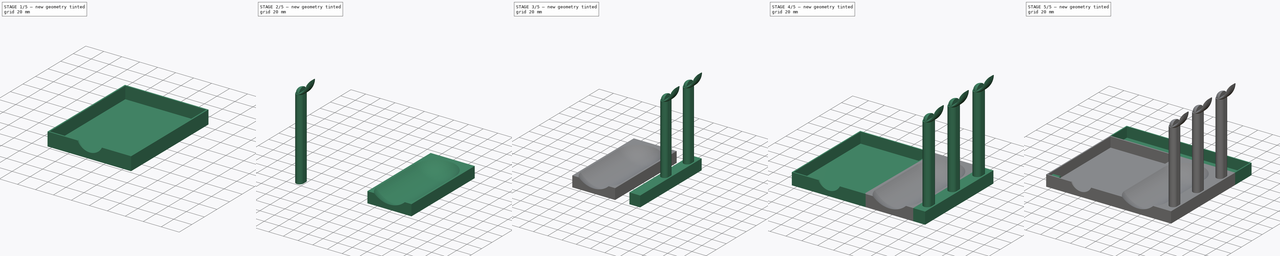
[diagram: build sequence overview — one tinted view per stage of 5, left to right]
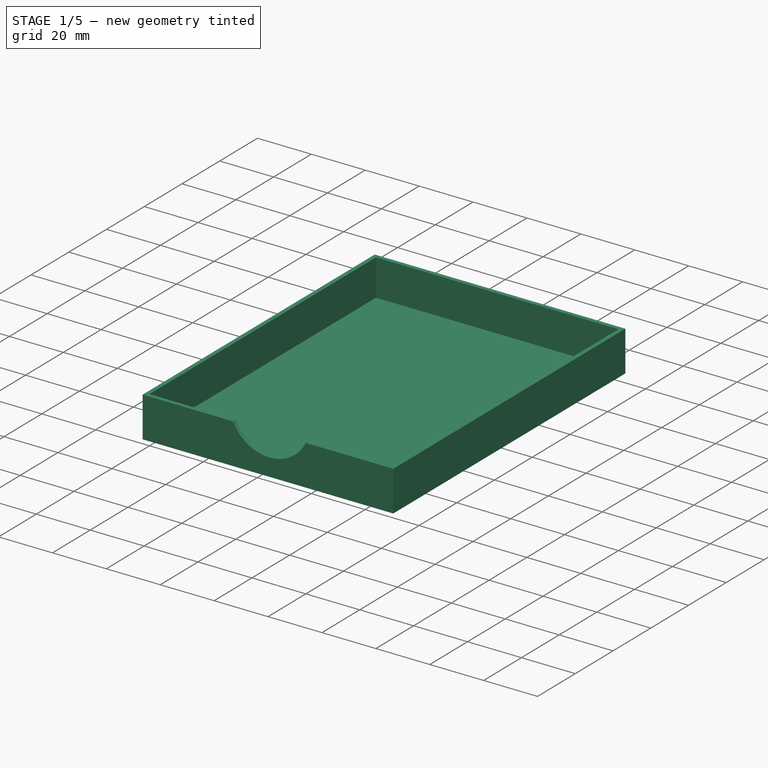
[diagram: stage 1 of 5 — iso view after this stage's code; geometry added in this stage tinted green]
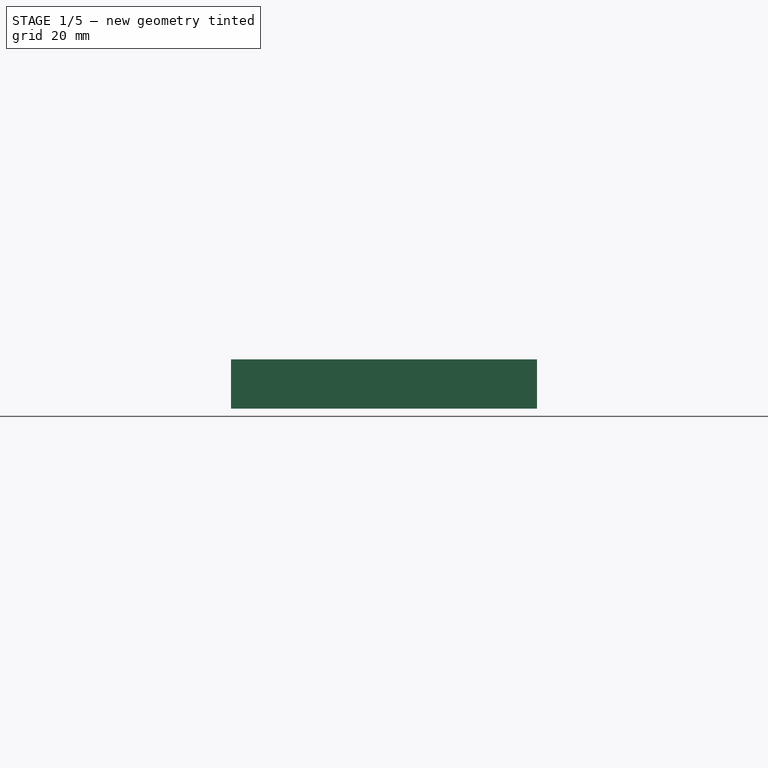
[diagram: stage 1 of 5 — front view after this stage's code; geometry added in this stage tinted green]
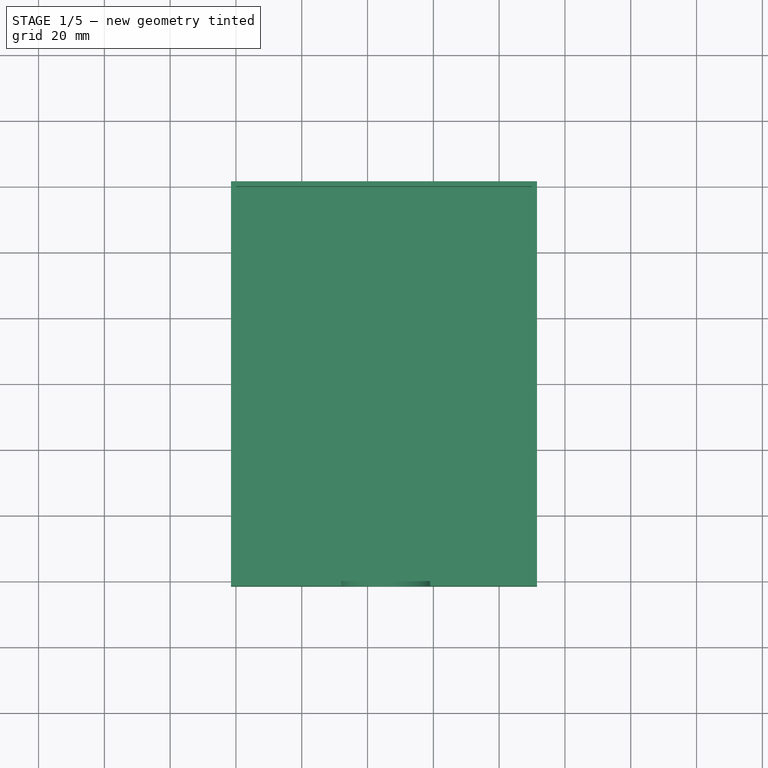
[diagram: stage 1 of 5 — top view after this stage's code; geometry added in this stage tinted green]
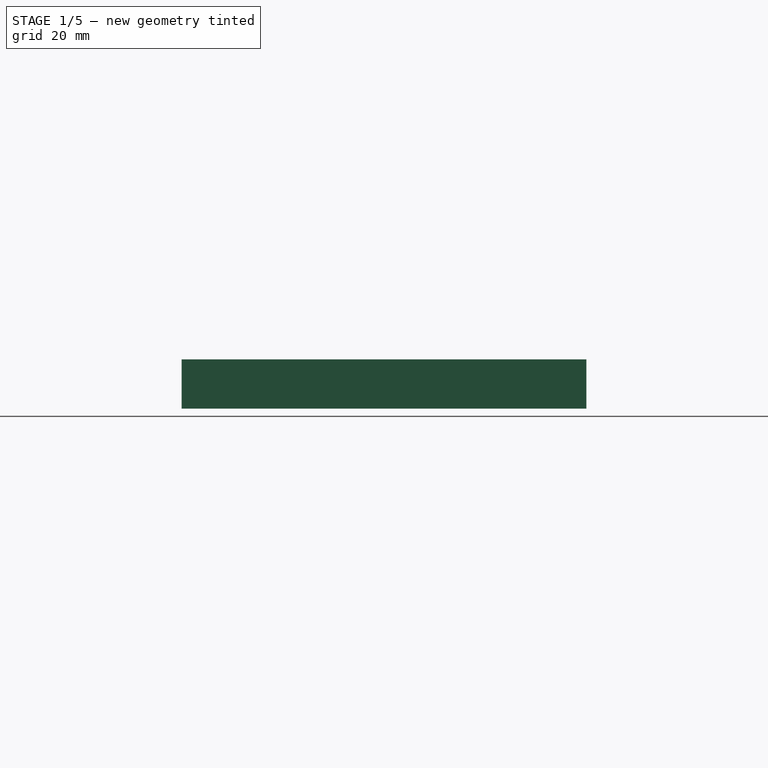
[diagram: stage 1 of 5 — right view after this stage's code; geometry added in this stage tinted green]
FCSTD DOCUMENT  (FreeCAD 0.18RUnknown)
Label: monedero_v2
License: All rights reserved
LicenseURL: http://en.wikipedia.org/wiki/All_rights_reserved
objects: Part::MultiFuse×9, App::Part×4, Sketcher::SketchObject×4, PartDesign::Body×4, PartDesign::AdditiveBox×3, Part::Box×2, Part::Thickness×1, Part::Cylinder×1, Part::Cut×1, PartDesign::AdditivePipe×1, PartDesign::AdditiveSphere×1, PartDesign::Plane×1, PartDesign::Groove×1, PartDesign::Thickness×1
note: 36 computed .brp shape members not serialized (recipe doc carries the construction recipe); baked Part::Feature solids carry a one-line shape summary decoded from their .brp

FEATURE [Part::Box] Box  label="Cubo"
  AttacherType = Attacher::AttachEngine3D
  Height = 13.5
  Length = 90
  Width = 120
FEATURE [Part::Thickness] Thickness
  Faces = -> Box [Face6]
  Intersection = true
  Join = 2
  Mode = 0
  SelfIntersection = true
  Value = 1.5
FEATURE [Part::Cylinder] Cylinder  label="Cilindro"
  Angle = 180
  AttacherType = Attacher::AttachEngine3D
  Height = 10
  Placement = pos=(45.5,5,20) rot=(0,0.707107,-0.707107;3.14159rad)
  Radius = 15
FEATURE [Part::Cut] Cut
  Base = -> Thickness
  Tool = -> Cylinder
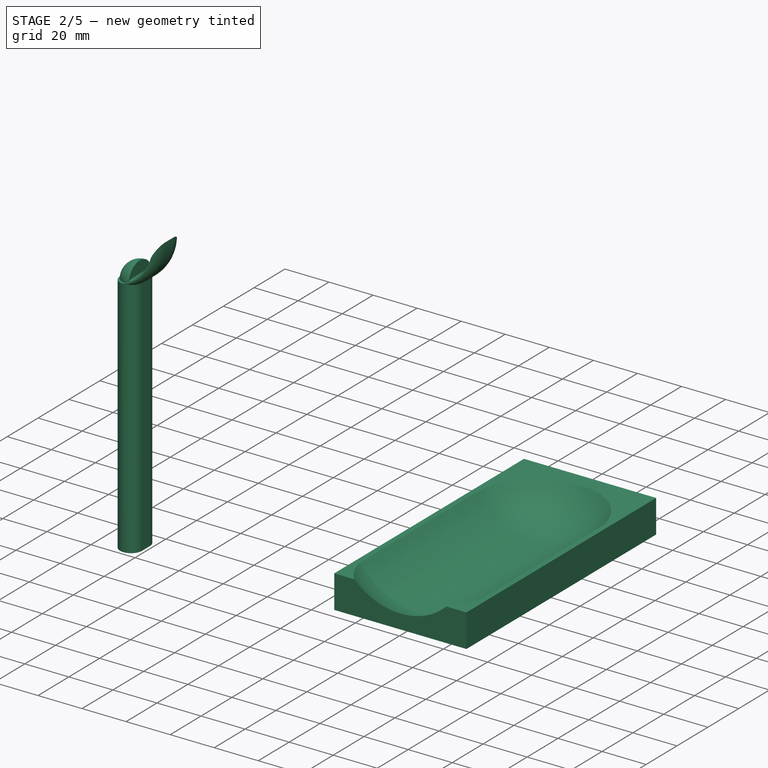
[diagram: stage 2 of 5 — iso view after this stage's code; geometry added in this stage tinted green]
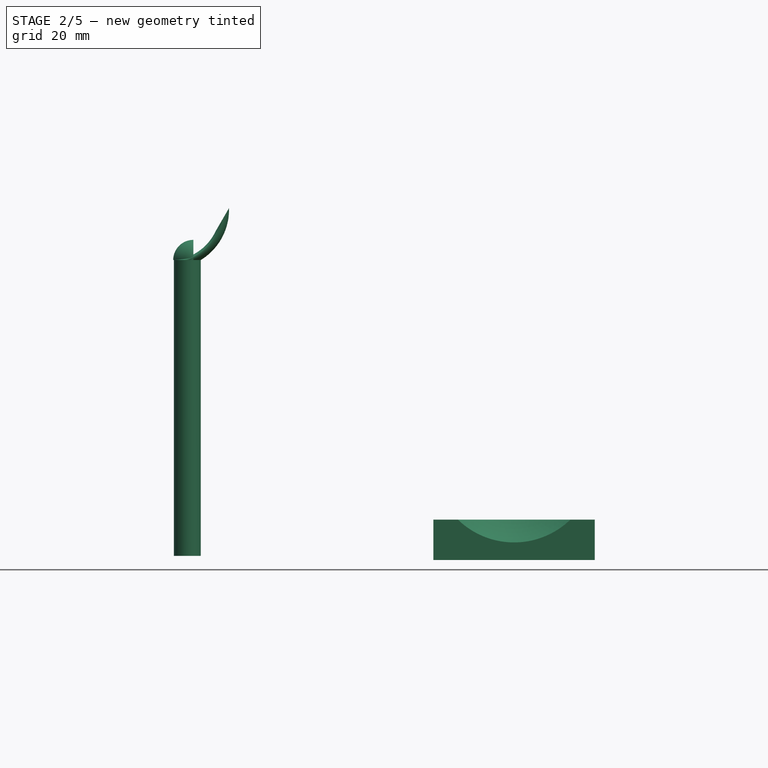
[diagram: stage 2 of 5 — front view after this stage's code; geometry added in this stage tinted green]
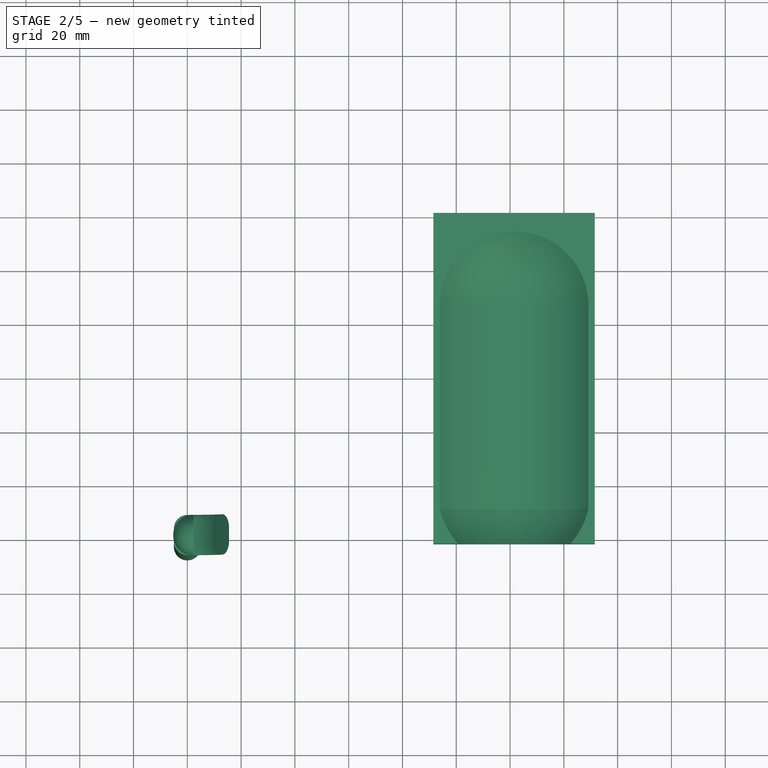
[diagram: stage 2 of 5 — top view after this stage's code; geometry added in this stage tinted green]
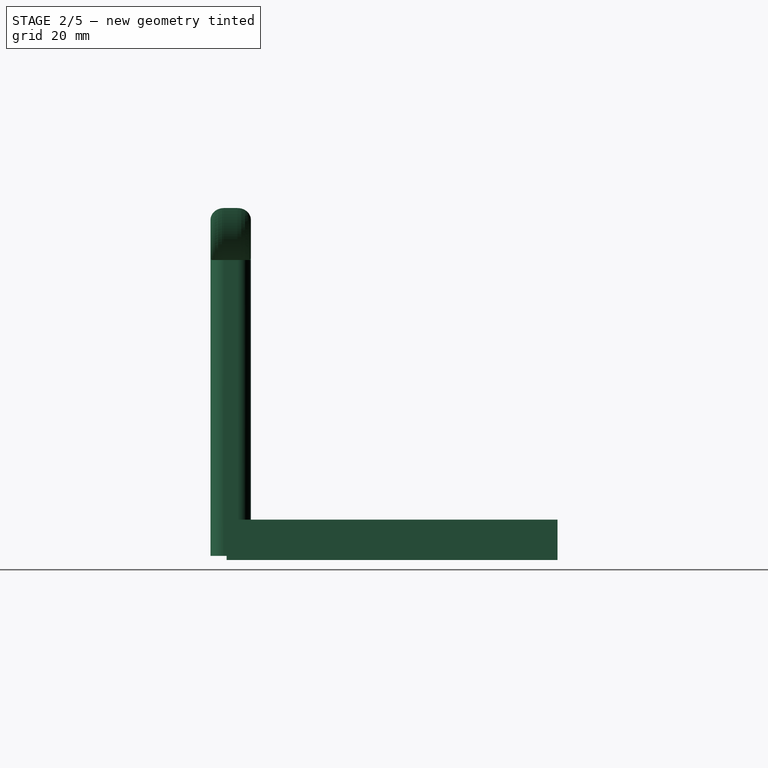
[diagram: stage 2 of 5 — right view after this stage's code; geometry added in this stage tinted green]
FEATURE [Sketcher::SketchObject] Sketch
  MapMode = 5
  Support = -> [XY_Plane005]
  sketch-geometry (4):
    g0: ArcOfCircle CenterX=-1e-16 CenterY=2.5 CenterZ=0 NormalX=0 NormalY=0 NormalZ=1 AngleXU=0 Radius=5 StartAngle=1e-16 EndAngle=3.14159
    g1: ArcOfCircle CenterX=-1e-16 CenterY=-2.5 CenterZ=0 NormalX=0 NormalY=0 NormalZ=1 AngleXU=0 Radius=5 StartAngle=3.14159 EndAngle=6.28319
    g2: LineSegment StartX=-5 StartY=2.5 StartZ=0 EndX=-5 EndY=-2.5 EndZ=0
    g3: LineSegment StartX=5 StartY=2.5 StartZ=0 EndX=5 EndY=-2.5 EndZ=0
  constraints (8):
    c: Tangent(g0,g3) = 1.5708
    c: Tangent(g0,g2) = -1.5708
    c: Tangent(g2,g1) = -1.5708
    c: Tangent(g3,g1) = 1.5708
    c: Symmetric(g0,g0,g-2)
    c: Symmetric(g1,g0,g-1)
    c: Radius(g1) = 5
    c: DistanceY(g3,g3) = 5
FEATURE [PartDesign::Body] Body001
  Group = -> [Sketch]
  Origin = -> Origin005
FEATURE [Sketcher::SketchObject] CopySketch
  sketch-geometry (4):
    g0: ArcOfCircle CenterX=-1e-16 CenterY=2.5 CenterZ=0 NormalX=0 NormalY=0 NormalZ=1 AngleXU=0 Radius=5 StartAngle=1e-16 EndAngle=3.14159
    g1: ArcOfCircle CenterX=-1e-16 CenterY=-2.5 CenterZ=0 NormalX=0 NormalY=0 NormalZ=1 AngleXU=0 Radius=5 StartAngle=3.14159 EndAngle=6.28319
    g2: LineSegment StartX=-5 StartY=2.5 StartZ=0 EndX=-5 EndY=-2.5 EndZ=0
    g3: LineSegment StartX=5 StartY=2.5 StartZ=0 EndX=5 EndY=-2.5 EndZ=0
  constraints (8):
    c: Tangent(g0,g3) = 1.5708
    c: Tangent(g0,g2) = -1.5708
    c: Tangent(g2,g1) = -1.5708
    c: Tangent(g3,g1) = 1.5708
    c: Symmetric(g0,g0,g-2)
    c: Symmetric(g1,g0,g-1)
    c: Radius(g1) = 5
    c: DistanceY(g3,g3) = 5
FEATURE [PartDesign::AdditivePipe] AdditivePipe
  AuxilleryCurvelinear = true
  AuxillerySpineTangent = false
  Binormal = (0,0,0)
  Mode = 0
  Profile = -> CopySketch
  Spine = -> Sketch001
  SpineTangent = false
  Transformation = 0
  Transition = 0
FEATURE [PartDesign::AdditiveSphere] Sphere001
  Angle1 = -90
  Angle2 = 90
  Angle3 = 90
  AttacherType = Attacher::AttachEngine3D
  AttachmentOffset = pos=(-7.25,0,-2.5) rot=(0.707107,0.707107,0;3.14159rad)
  BaseFeature = -> AdditivePipe
  MapMode = 7
  Placement = pos=(2.25,0,110) rot=(-0.57735,0.57735,-0.57735;4.18879rad)
  Radius = 7.5
  Support = -> [AdditivePipe]
FEATURE [PartDesign::Body] Body002  label="colgador"
  Group = -> [Box006]
  Origin = -> Origin006
  Placement = pos=(180,5,0) rot=(0,0,1;0rad)
  Tip = -> Box006
FEATURE [App::Part] Part003  label="Llavero"
  Group = -> [Body001,Body002,Box005,CopySketch,Sphere001,Sketch001,AdditivePipe,Fusion,Fusion001,Fusion002,Fusion004,Fusion003,Fusion005]
  Origin = -> Origin004
  Placement = pos=(-20,0,0) rot=(0,0,1;0rad)
FEATURE [PartDesign::AdditiveBox] Box007
  AttacherType = Attacher::AttachEngine3D
  Height = 15
  Length = 60
  MapMode = 1
  Placement = pos=(91.5,-1.5,-1.5) rot=(0,0,1;0rad)
  Support = -> [Cut]
  Width = 123
FEATURE [PartDesign::Plane] DatumPlane
  AttachmentOffset = pos=(30,0,21.5) rot=(0,0,1;0rad)
  Length = 190.646
  MapMode = 5
  Placement = pos=(121.5,-1.5,35) rot=(0,0,1;0rad)
  ResizeMode = 0
  Support = -> [Box007]
  Width = 160.646
FEATURE [Sketcher::SketchObject] Sketch002
  ExternalGeometry = -> [Box007]
  MapMode = 5
  Placement = pos=(121.5,-1.5,35) rot=(0,0,1;0rad)
  Support = -> [DatumPlane]
  sketch-geometry (4):
    g0: LineSegment StartX=1.07e-14 StartY=123.5 StartZ=0 EndX=-6.5e-15 EndY=-16.5 EndZ=0
    g1: LineSegment StartX=35 StartY=88 StartZ=0 EndX=35 EndY=13 EndZ=0
    g2: ArcOfCircle CenterX=0 CenterY=88.4965 CenterZ=0 NormalX=0 NormalY=0 NormalZ=1 AngleXU=0 Radius=35.0035 StartAngle=6.269 EndAngle=7.85398
    g3: ArcOfCircle CenterX=0 CenterY=19.0127 CenterZ=0 NormalX=0 NormalY=0 NormalZ=1 AngleXU=0 Radius=35.5127 StartAngle=4.71239 EndAngle=6.11305
  constraints (14):
    c: PointOnObject(g0,g-2)
    c: PointOnObject(g0,g-2)
    c: Distance(g0,g-3) = 0.5
    c: DistanceY(g0,g0) = 140
    c: Vertical(g1)
    c: Distance(g1,g-3) = 35
    c: DistanceY(g1,g1) = 75
    c: Distance(g1,g0) = 35
    c: Coincident(g2,g0)
    c: Coincident(g2,g1)
    c: Coincident(g3,g0)
    c: Coincident(g3,g1)
    c: PointOnObject(g2,g0)
    c: PointOnObject(g3,g0)
FEATURE [PartDesign::Groove] Groove
  Angle = 180
  Axis = (0,1,0)
  Base = (121.5,-1.5,35)
  BaseFeature = -> Box007
  Placement = pos=(91.5,-1.5,-1.5) rot=(0,0,1;0rad)
  Profile = -> Sketch002
  ReferenceAxis = -> Sketch002 [V_Axis]
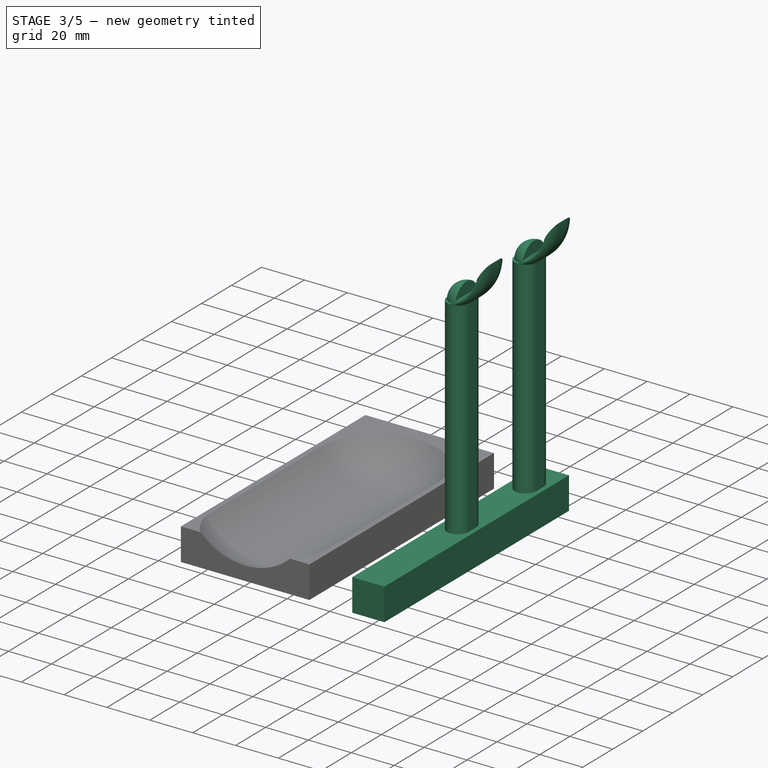
[diagram: stage 3 of 5 — iso view after this stage's code; geometry added in this stage tinted green]
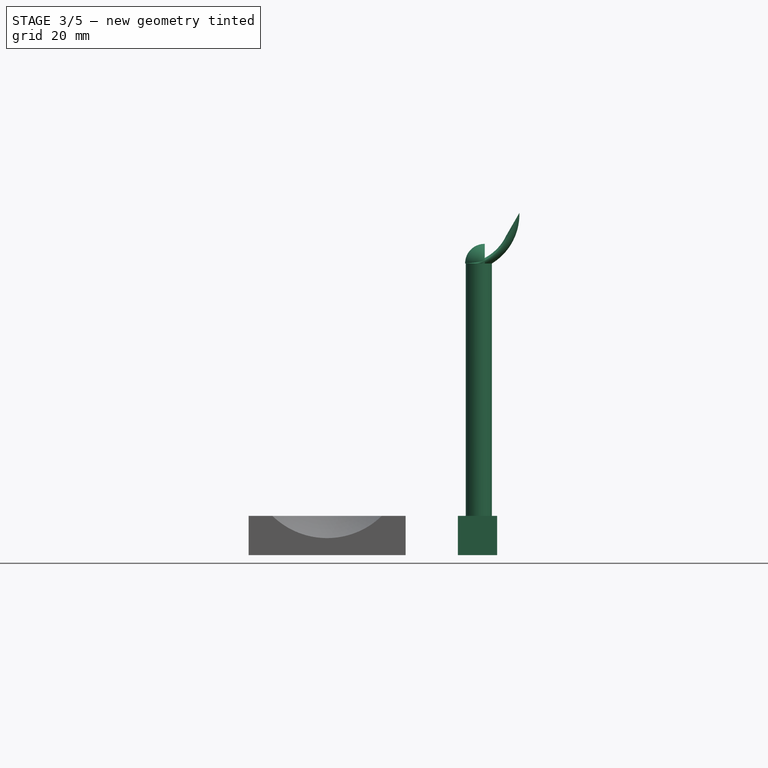
[diagram: stage 3 of 5 — front view after this stage's code; geometry added in this stage tinted green]
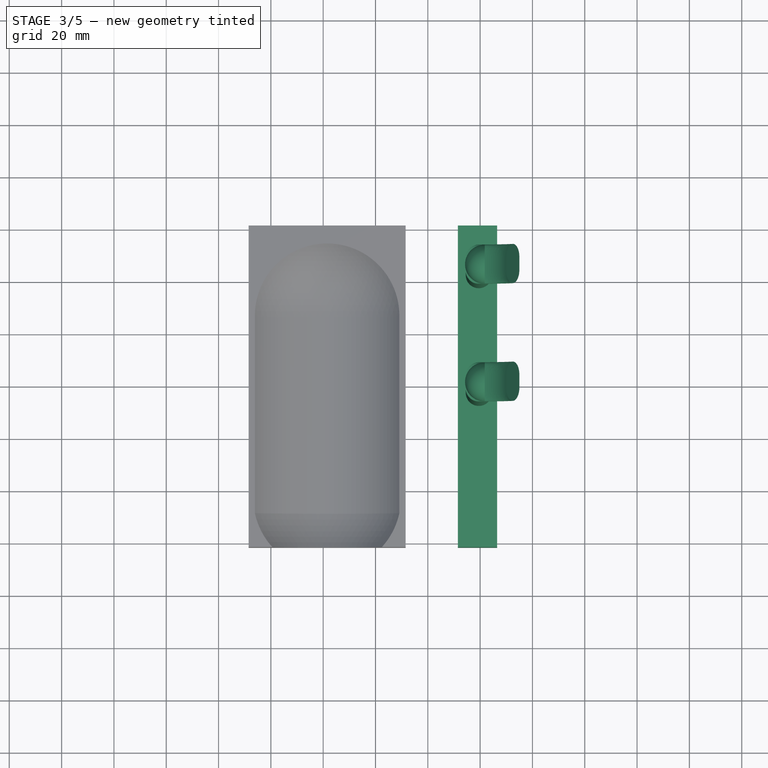
[diagram: stage 3 of 5 — top view after this stage's code; geometry added in this stage tinted green]
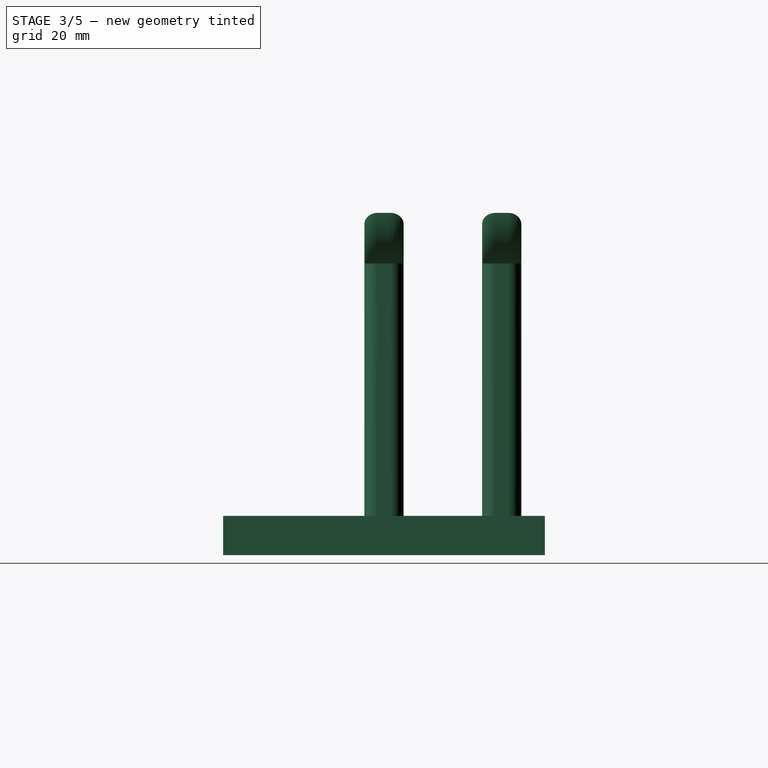
[diagram: stage 3 of 5 — right view after this stage's code; geometry added in this stage tinted green]
FEATURE [App::Part] Part  label="Cartera"
  Group = -> [Thickness,Box,Cylinder,Cut]
  Origin = -> Origin
FEATURE [Sketcher::SketchObject] Sketch001
  MapMode = 5
  Placement = pos=(0,0,0) rot=(1,0,0;1.5708rad)
  Support = -> [XZ_Plane006]
  sketch-geometry (2):
    g0: LineSegment StartX=3.6e-15 StartY=0 StartZ=0 EndX=3.6e-15 EndY=110 EndZ=0
    g1: ArcOfCircle CenterX=-6.49038 CenterY=128.758 CenterZ=0 NormalX=0 NormalY=0 NormalZ=1 AngleXU=0 Radius=19.8494 StartAngle=5.0455 EndAngle=6.09269
  constraints (7):
    c: Vertical(g0)
    c: DistanceY(g0,g0) = 110
    c: Angle(g1) = 1.0472
    c: Coincident(g-1,g0)
    c: Distance(g1,g-2) = 13
    c: Distance(g1,g-1) = 125
    c: Coincident(g0,g1)
FEATURE [Part::Box] Box005  label="Cubo005"
  AttacherType = Attacher::AttachEngine3D
  Height = 15
  Length = 15
  Placement = pos=(171.5,-1.5,-1.5) rot=(0,0,1;0rad)
  Width = 123
FEATURE [Part::MultiFuse] Fusion001  label="brazo001"
  Placement = pos=(179.5,60,0) rot=(0,0,1;0rad)
  Shapes = -> [AdditivePipe,Sphere001]
FEATURE [Part::MultiFuse] Fusion002  label="brazo002"
  Placement = pos=(179.5,105,0) rot=(0,0,1;0rad)
  Shapes = -> [AdditivePipe,Sphere001]
FEATURE [Part::MultiFuse] Fusion003
  Shapes = -> [Box005,Fusion002]
FEATURE [Part::MultiFuse] Fusion004
  Shapes = -> [Fusion003,Fusion001]
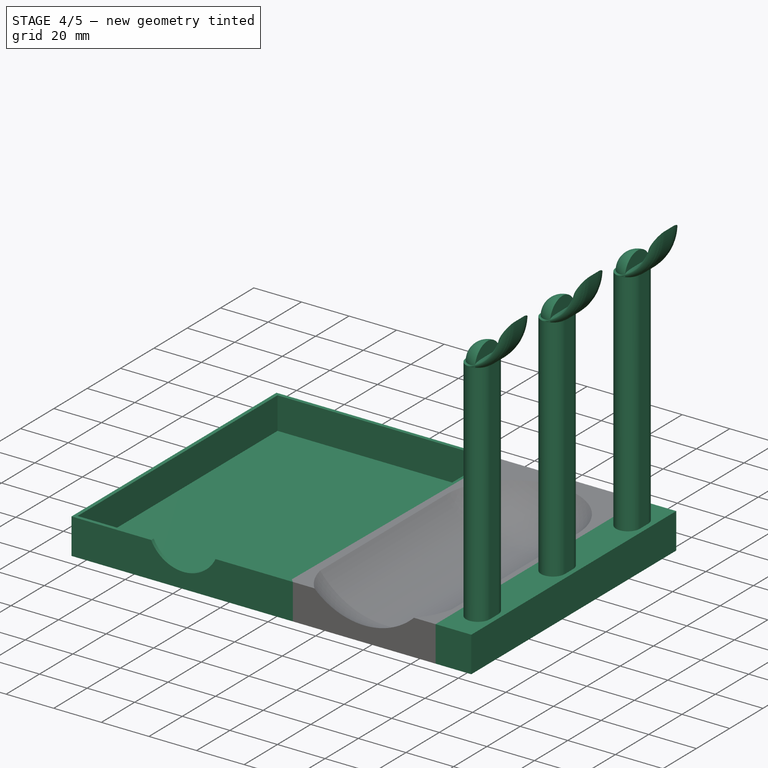
[diagram: stage 4 of 5 — iso view after this stage's code; geometry added in this stage tinted green]
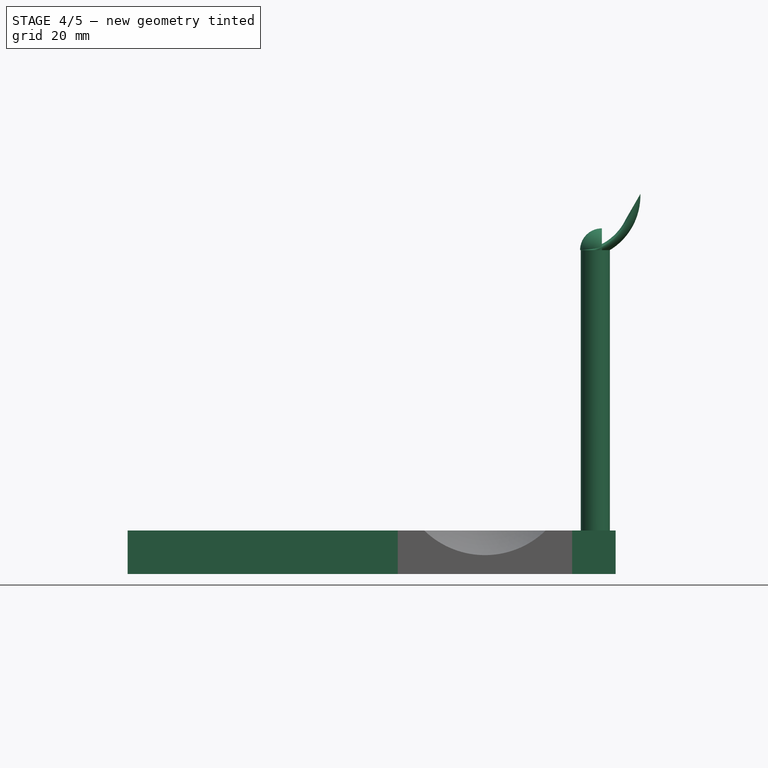
[diagram: stage 4 of 5 — front view after this stage's code; geometry added in this stage tinted green]
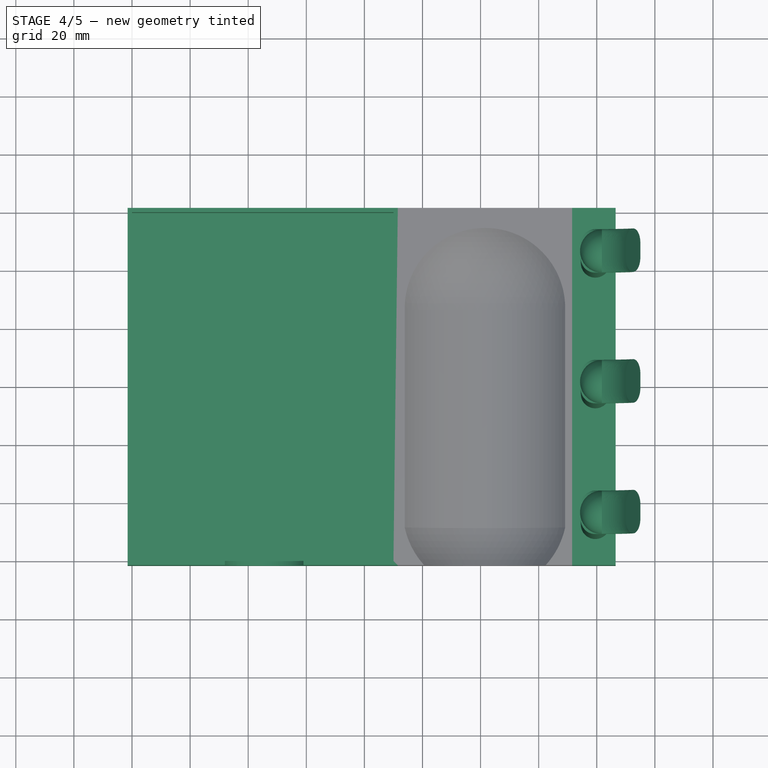
[diagram: stage 4 of 5 — top view after this stage's code; geometry added in this stage tinted green]
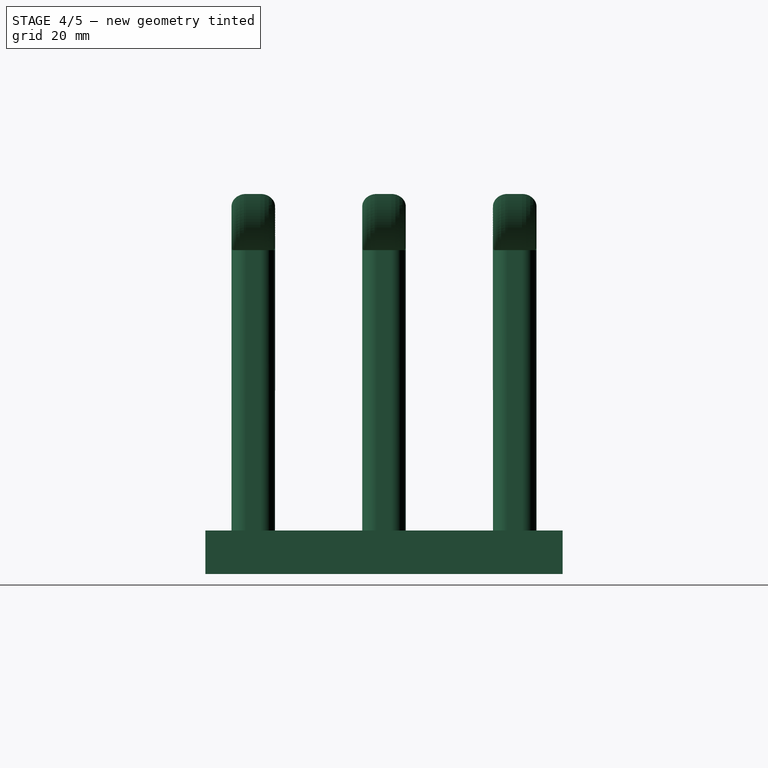
[diagram: stage 4 of 5 — right view after this stage's code; geometry added in this stage tinted green]
FEATURE [Part::MultiFuse] Fusion  label="brazo"
  Placement = pos=(179.5,15,0) rot=(0,0,1;0rad)
  Shapes = -> [AdditivePipe,Sphere001]
FEATURE [Part::MultiFuse] Fusion005
  Placement = pos=(-20,0,0) rot=(0,0,1;0rad)
  Shapes = -> [Fusion004,Fusion]
FEATURE [PartDesign::Body] Body003
  Group = -> [Box008,Thickness001]
  Origin = -> Origin010
  Tip = -> Thickness001
FEATURE [App::Part] Part005  label="gafas"
  Group = -> [Body003]
  Origin = -> Origin009
FEATURE [Part::MultiFuse] Fusion006
  Shapes = -> [Fusion005,Body]
FEATURE [Part::MultiFuse] Fusion007
  Shapes = -> [Fusion006,Cut]
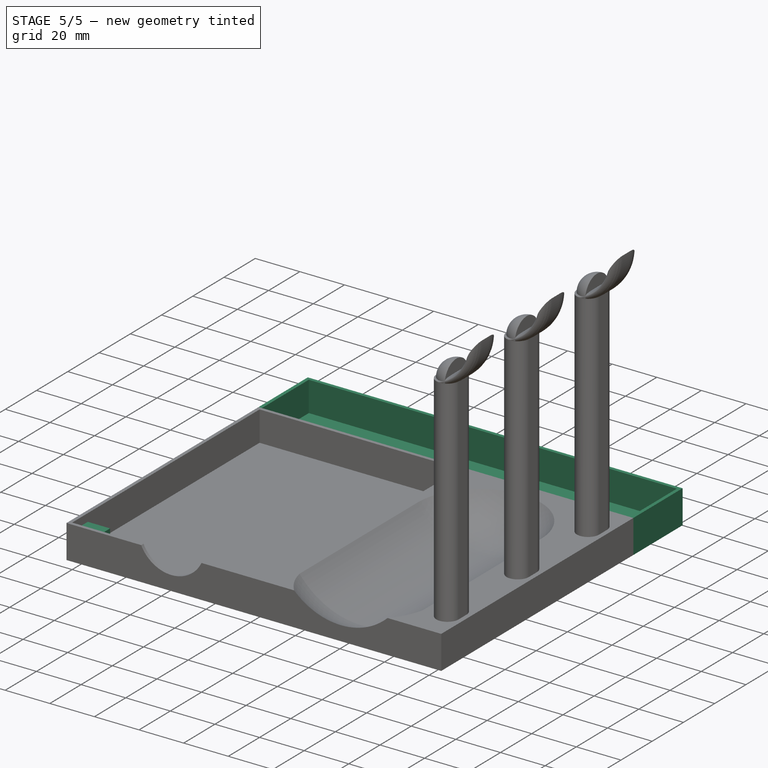
[diagram: stage 5 of 5 — iso view after this stage's code; geometry added in this stage tinted green]
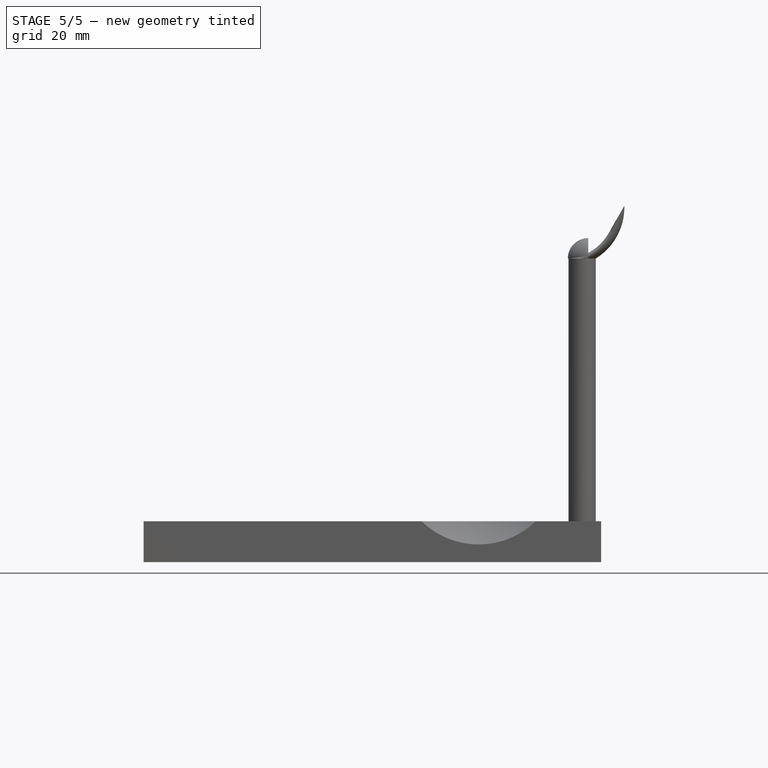
[diagram: stage 5 of 5 — front view after this stage's code; geometry added in this stage tinted green]
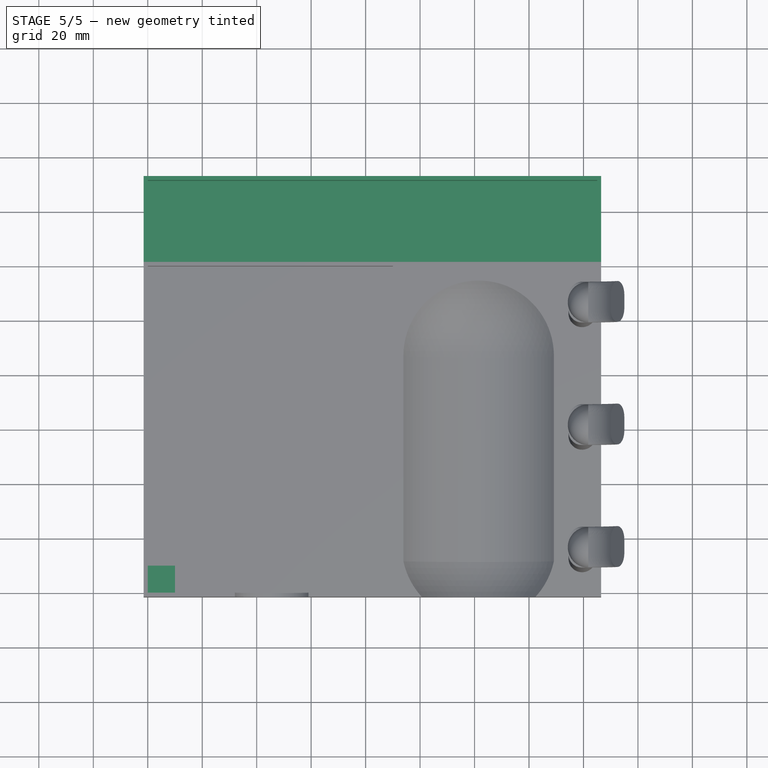
[diagram: stage 5 of 5 — top view after this stage's code; geometry added in this stage tinted green]
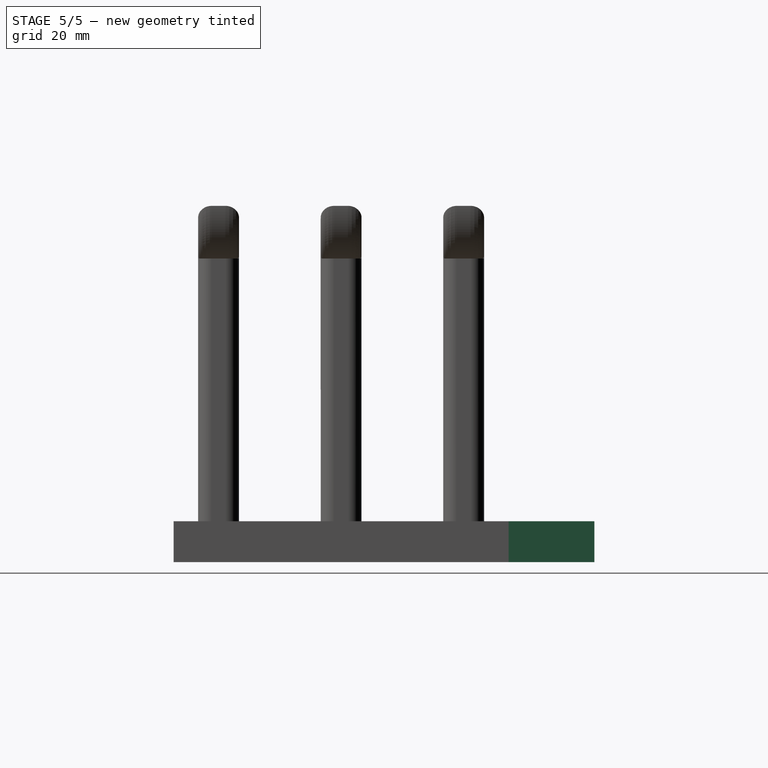
[diagram: stage 5 of 5 — right view after this stage's code; geometry added in this stage tinted green]
FEATURE [PartDesign::AdditiveBox] Box006
  AttacherType = Attacher::AttachEngine3D
  Height = 10
  Length = 10
  MapMode = 5
  Support = -> [Cut]
  Width = 10
FEATURE [PartDesign::Body] Body
  Group = -> [Box007,DatumPlane,Sketch002,Groove]
  Origin = -> Origin008
  Tip = -> Groove
FEATURE [App::Part] Part004  label="monedero"
  Group = -> [Body]
  Origin = -> Origin007
FEATURE [PartDesign::AdditiveBox] Box008
  AttacherType = Attacher::AttachEngine3D
  AttachmentOffset = pos=(1.5,0,1.5) rot=(0,0,1;0rad)
  Height = 13.5
  Length = 165
  MapMode = 1
  Placement = pos=(0,121.5,0) rot=(0,0,1;0rad)
  Support = -> [Cut]
  Width = 30
FEATURE [PartDesign::Thickness] Thickness001
  Base = -> Box008 [Face6]
  BaseFeature = -> Box008
  Join = 1
  Mode = 0
  Value = 1.5
FEATURE [Part::MultiFuse] Fusion008  label="Pieza"
  Shapes = -> [Fusion007,Body003]
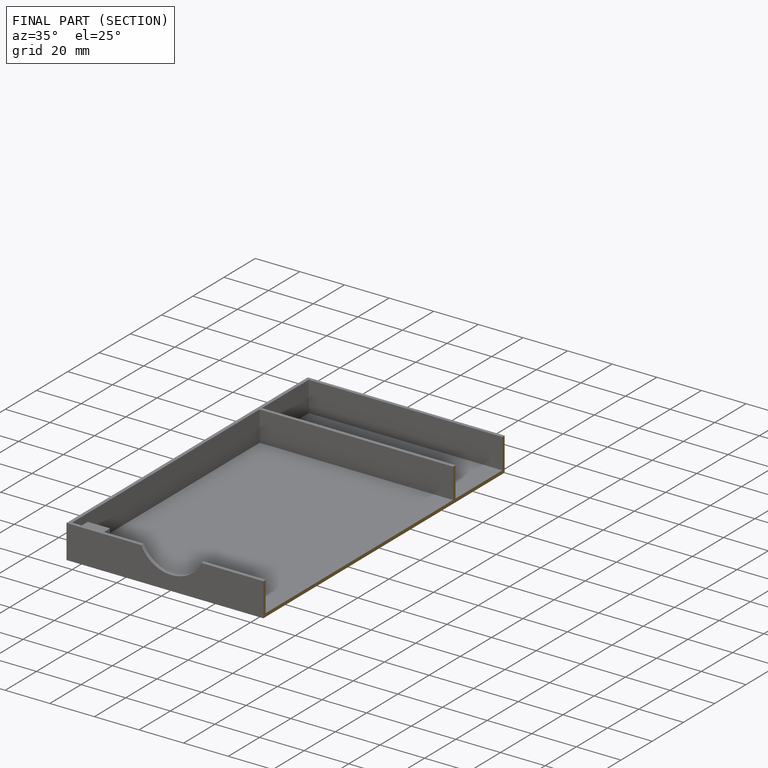
[diagram: finished part — half-section view (interior)]
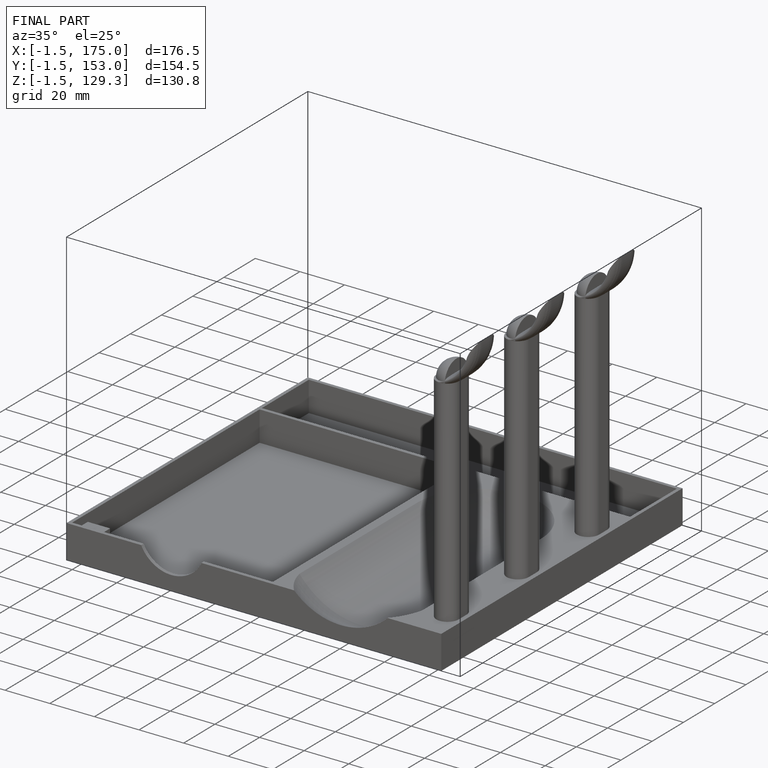
[diagram: finished part — iso view with bounding-box wireframe]
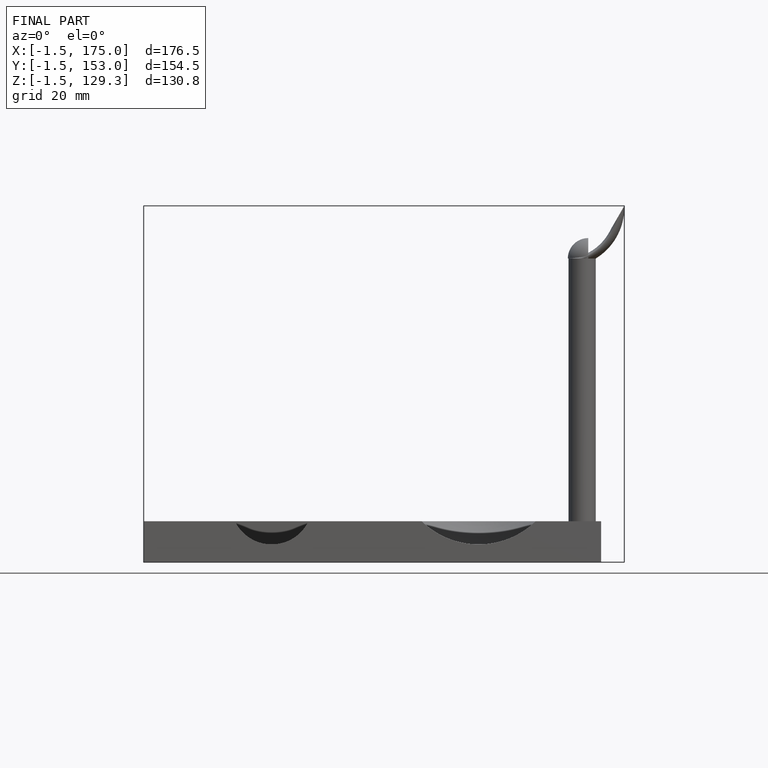
[diagram: finished part — front view with bounding-box wireframe]
